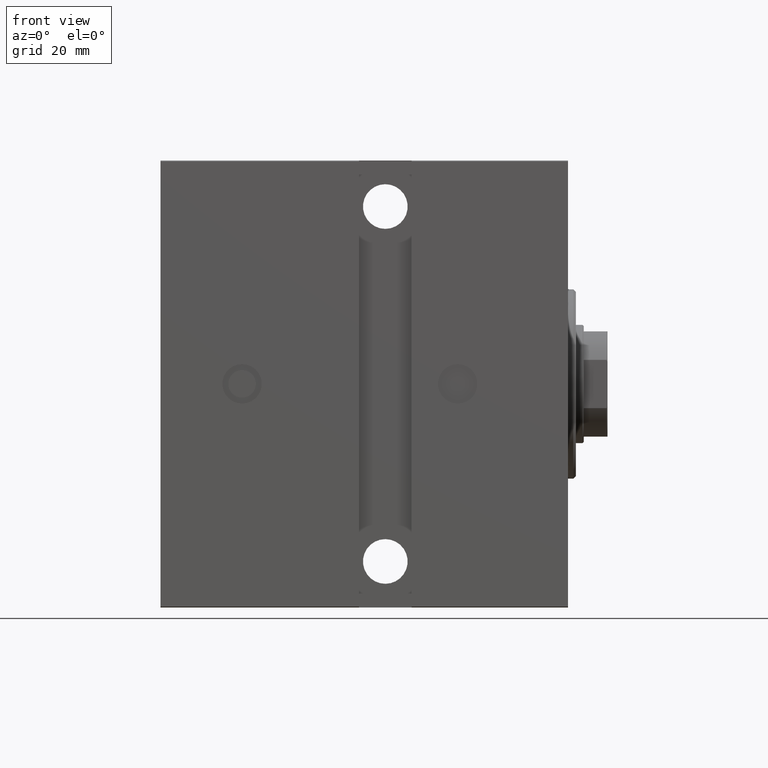
[diagram: clean part render]
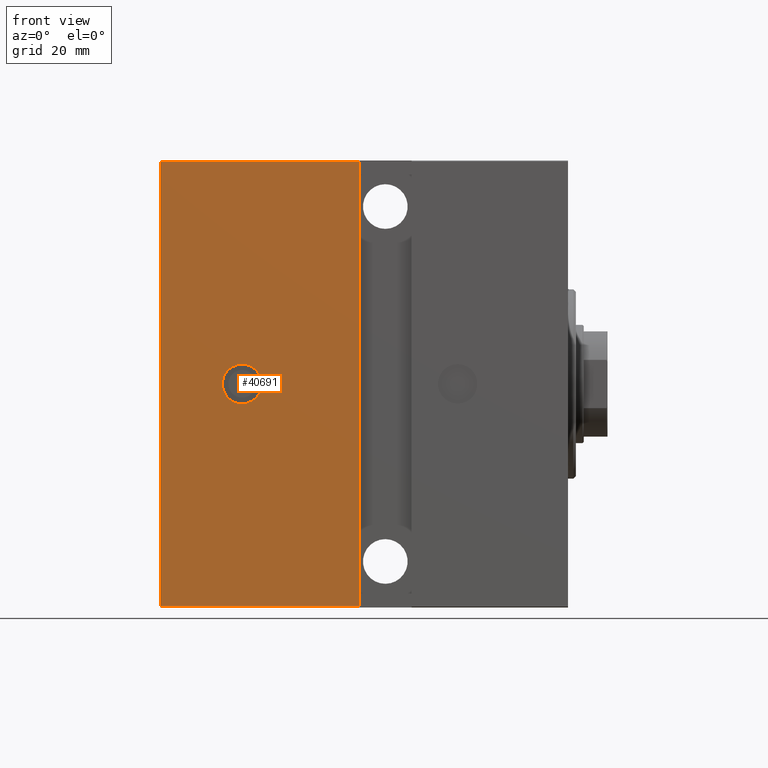
[diagram: same view with one face highlighted and labeled with its STEP entity id]
A machine part, front view. The second image highlights one B-rep face of the part: STEP entity #40691.
In plain terms, the highlighted planar face has unit normal (0, 1, 0).
Its self-contained STEP definition (entity closure, byte-faithful):
#187 = DIRECTION ( 'NONE',  ( 0.000000000000000000, 0.000000000000000000, 1.000000000000000000 ) ) ;
#294 = EDGE_CURVE ( 'NONE', #26695, #8446, #32365, .T. ) ;
#1591 = DIRECTION ( 'NONE',  ( -1.000000000000000000, 0.000000000000000000, 0.000000000000000000 ) ) ;
#1879 = LINE ( 'NONE', #41505, #19627 ) ;
#2170 = ORIENTED_EDGE ( 'NONE', *, *, #294, .F. ) ;
#3717 = DIRECTION ( 'NONE',  ( 0.000000000000000000, 0.000000000000000000, 1.000000000000000000 ) ) ;
#3888 = ORIENTED_EDGE ( 'NONE', *, *, #40382, .T. ) ;
#4248 = EDGE_CURVE ( 'NONE', #8446, #26695, #26937, .T. ) ;
#4270 = VERTEX_POINT ( 'NONE', #14506 ) ;
#4388 = DIRECTION ( 'NONE',  ( 0.000000000000000000, 0.000000000000000000, 1.000000000000000000 ) ) ;
#4568 = CARTESIAN_POINT ( 'NONE',  ( 123.9999999999999858, 70.00000000000002842, 7.499999999999999112 ) ) ;
#7690 = EDGE_LOOP ( 'NONE', ( #2170, #11402 ) ) ;
#7936 = LINE ( 'NONE', #37632, #12853 ) ;
#8281 = CARTESIAN_POINT ( 'NONE',  ( 155.0000000000000000, 70.00000000000002842, -84.70000000000001705 ) ) ;
#8446 = VERTEX_POINT ( 'NONE', #30574 ) ;
#9892 = CARTESIAN_POINT ( 'NONE',  ( 123.9999999999999858, 70.00000000000002842, -7.523163845262640051E-32 ) ) ;
#10208 = LINE ( 'NONE', #33222, #39544 ) ;
#11375 = VERTEX_POINT ( 'NONE', #14729 ) ;
#11402 = ORIENTED_EDGE ( 'NONE', *, *, #4248, .F. ) ;
#11470 = DIRECTION ( 'NONE',  ( 0.000000000000000000, -1.000000000000000000, 0.000000000000000000 ) ) ;
#11675 = EDGE_LOOP ( 'NONE', ( #39203, #3888, #27900, #39541 ) ) ;
#12396 = EDGE_CURVE ( 'NONE', #30536, #20265, #10208, .T. ) ;
#12853 = VECTOR ( 'NONE', #27922, 1000.000000000000000 ) ;
#14309 = CARTESIAN_POINT ( 'NONE',  ( 123.9999999999999858, 70.00000000000002842, -7.523163845262640051E-32 ) ) ;
#14506 = CARTESIAN_POINT ( 'NONE',  ( 79.50000000000004263, 70.00000000000002842, 84.70000000000007390 ) ) ;
#14729 = CARTESIAN_POINT ( 'NONE',  ( 79.50000000000001421, 70.00000000000002842, -84.70000000000001705 ) ) ;
#19627 = VECTOR ( 'NONE', #41725, 1000.000000000000000 ) ;
#20265 = VERTEX_POINT ( 'NONE', #38044 ) ;
#21353 = AXIS2_PLACEMENT_3D ( 'NONE', #9892, #29645, #187 ) ;
#21564 = CARTESIAN_POINT ( 'NONE',  ( 155.0000000000000000, 70.00000000000002842, -85.00000000000000000 ) ) ;
#22341 = EDGE_CURVE ( 'NONE', #4270, #11375, #7936, .T. ) ;
#24565 = DIRECTION ( 'NONE',  ( 0.000000000000000000, -0.000000000000000000, -1.000000000000000000 ) ) ;
#25717 = AXIS2_PLACEMENT_3D ( 'NONE', #21564, #11470, #24565 ) ;
#26695 = VERTEX_POINT ( 'NONE', #4568 ) ;
#26937 = CIRCLE ( 'NONE', #40719, 7.499999999999999112 ) ;
#27203 = DIRECTION ( 'NONE',  ( 0.000000000000000000, 1.000000000000000000, 1.814410260041850832E-16 ) ) ;
#27787 = PLANE ( 'NONE',  #25717 ) ;
#27900 = ORIENTED_EDGE ( 'NONE', *, *, #22341, .F. ) ;
#27922 = DIRECTION ( 'NONE',  ( -1.632680918566407040E-16, -0.000000000000000000, -1.000000000000000000 ) ) ;
#29645 = DIRECTION ( 'NONE',  ( 0.000000000000000000, 1.000000000000000000, 1.814410260041850832E-16 ) ) ;
#30536 = VERTEX_POINT ( 'NONE', #31658 ) ;
#30574 = CARTESIAN_POINT ( 'NONE',  ( 123.9999999999999858, 70.00000000000002842, -7.499999999999999112 ) ) ;
#30650 = LINE ( 'NONE', #8281, #33316 ) ;
#31658 = CARTESIAN_POINT ( 'NONE',  ( 155.0000000000000000, 70.00000000000002842, -84.70000000000001705 ) ) ;
#32365 = CIRCLE ( 'NONE', #21353, 7.499999999999999112 ) ;
#33222 = CARTESIAN_POINT ( 'NONE',  ( 155.0000000000000000, 70.00000000000002842, -85.00000000000000000 ) ) ;
#33316 = VECTOR ( 'NONE', #1591, 1000.000000000000000 ) ;
#37632 = CARTESIAN_POINT ( 'NONE',  ( 79.50000000000001421, 70.00000000000002842, -85.00000000000000000 ) ) ;
#37922 = FACE_OUTER_BOUND ( 'NONE', #11675, .T. ) ;
#38044 = CARTESIAN_POINT ( 'NONE',  ( 155.0000000000000000, 70.00000000000002842, 84.70000000000007390 ) ) ;
#39203 = ORIENTED_EDGE ( 'NONE', *, *, #12396, .F. ) ;
#39541 = ORIENTED_EDGE ( 'NONE', *, *, #42353, .T. ) ;
#39544 = VECTOR ( 'NONE', #3717, 1000.000000000000000 ) ;
#40382 = EDGE_CURVE ( 'NONE', #30536, #11375, #30650, .T. ) ;
#40691 = ADVANCED_FACE ( 'NONE', ( #40952, #37922 ), #27787, .F. ) ;
#40719 = AXIS2_PLACEMENT_3D ( 'NONE', #14309, #27203, #4388 ) ;
#40952 = FACE_BOUND ( 'NONE', #7690, .T. ) ;
#41505 = CARTESIAN_POINT ( 'NONE',  ( 155.0000000000000000, 70.00000000000002842, 84.70000000000007390 ) ) ;
#41725 = DIRECTION ( 'NONE',  ( 1.000000000000000000, 0.000000000000000000, 0.000000000000000000 ) ) ;
#42353 = EDGE_CURVE ( 'NONE', #4270, #20265, #1879, .T. ) ;